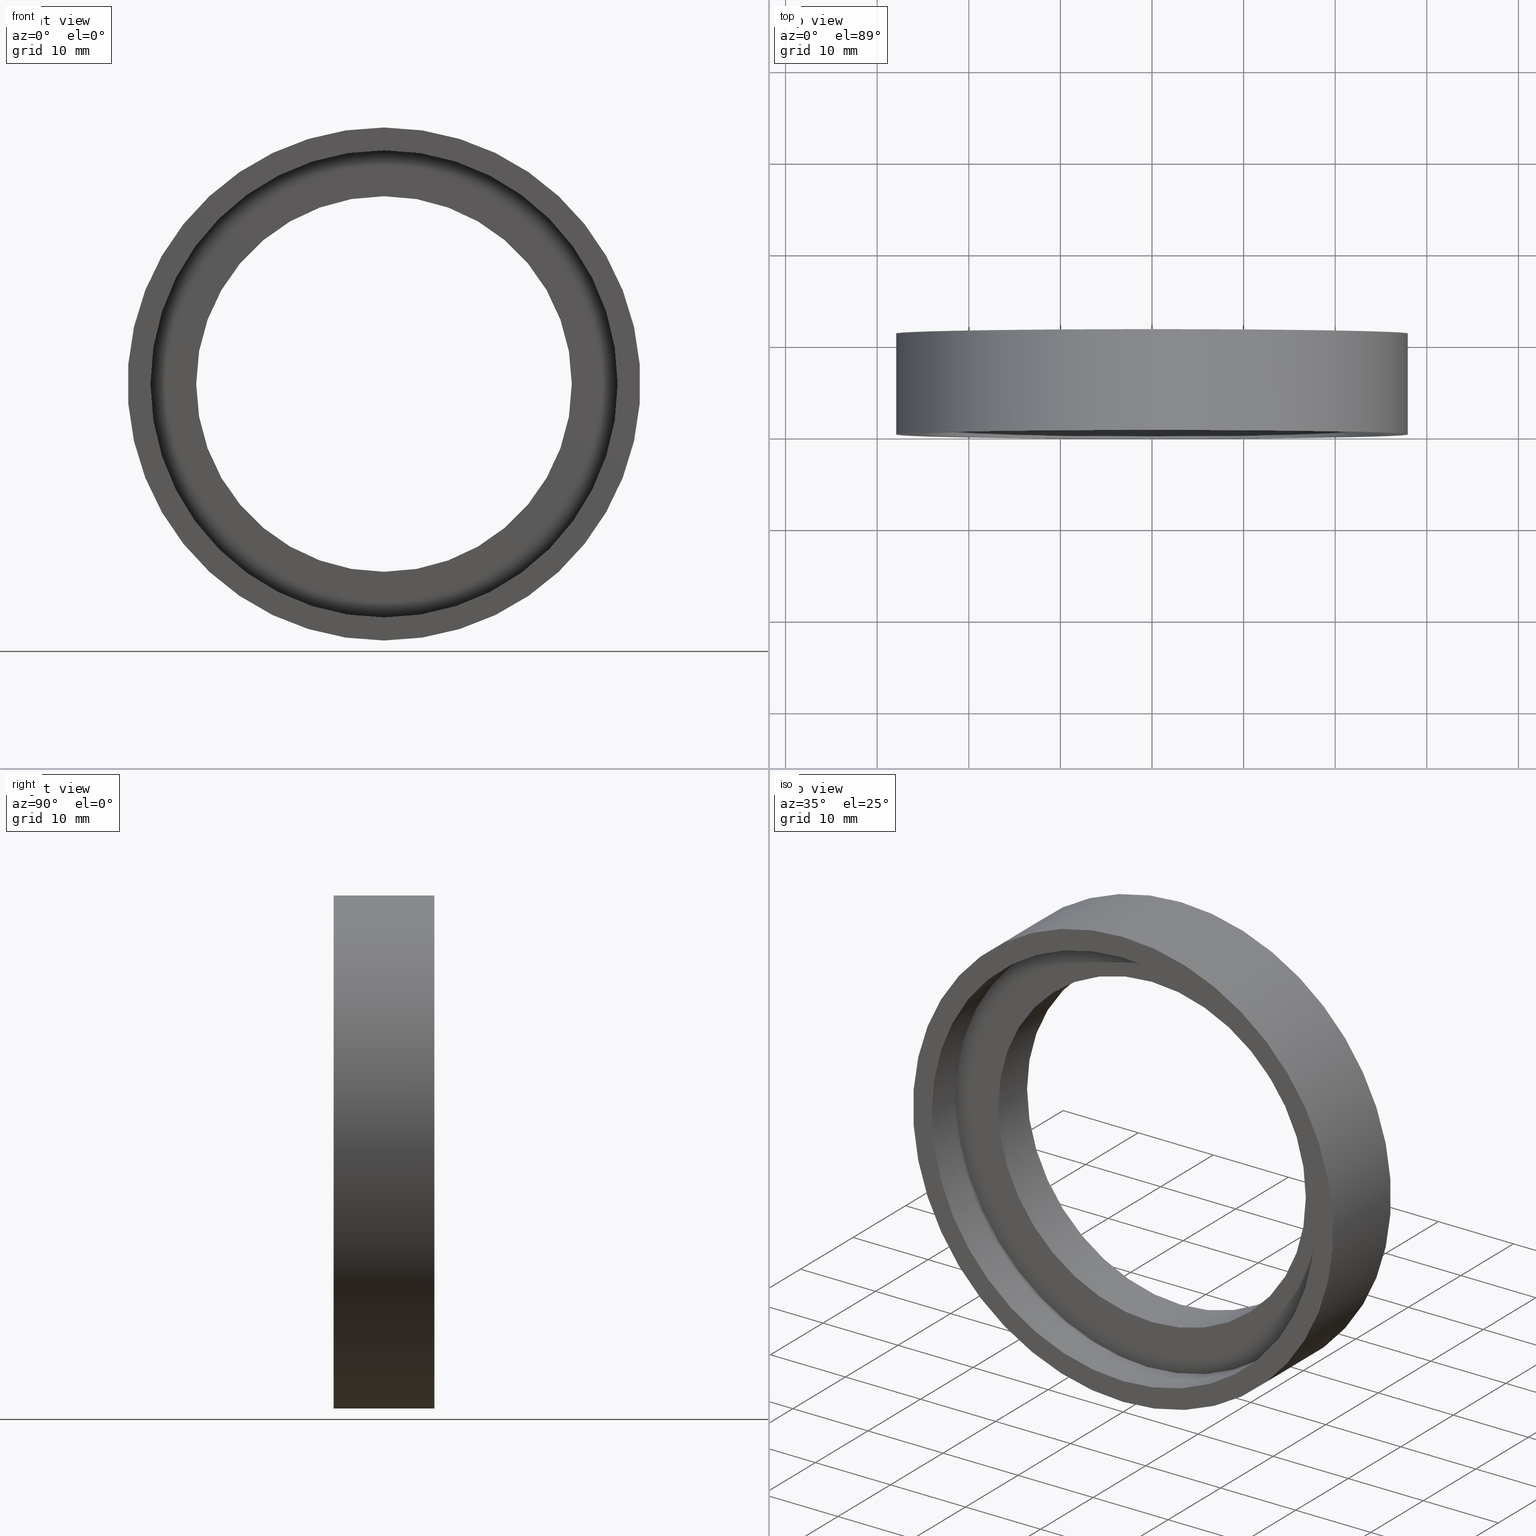
[diagram: canonical four-view strip — front | top / right | iso, engineering-drawing reading convention]
A machine part, canonical four-view strip (front | top / right | iso — engineering-drawing reading convention). The complete STEP part file that produces these views, byte-faithful:
ISO-10303-21;
HEADER;
FILE_DESCRIPTION (( 'STEP AP214' ),
    '1' );
FILE_NAME ('504009.STEP',
    '2019-10-09T02:01:39',
    ( 'user' ),
    ( '΢���й�' ),
    'SwSTEP 2.0',
    'SolidWorks 2016',
    '' );
FILE_SCHEMA (( 'AUTOMOTIVE_DESIGN' ));
ENDSEC;

DATA;
#1 = VERTEX_POINT ( 'NONE', #298 ) ;
#2 = EDGE_CURVE ( 'NONE', #226, #207, #62, .T. ) ;
#3 = ORIENTED_EDGE ( 'NONE', *, *, #2, .F. ) ;
#4 = FACE_OUTER_BOUND ( 'NONE', #138, .T. ) ;
#5 = EDGE_LOOP ( 'NONE', ( #185, #143, #164, #330 ) ) ;
#6 = CARTESIAN_POINT ( 'NONE',  ( 0.0000000000000000000, 0.0000000000000000000, 25.50000000000000400 ) ) ;
#7 =( LENGTH_UNIT ( ) NAMED_UNIT ( * ) SI_UNIT ( .MILLI., .METRE. ) );
#8 = EDGE_CURVE ( 'NONE', #245, #71, #25, .T. ) ;
#9 = CARTESIAN_POINT ( 'NONE',  ( 0.0000000000000000000, 60.02082041425541100, 0.0000000000000000000 ) ) ;
#10 = COLOUR_RGB ( '',1.000000000000000000, 1.000000000000000000, 1.000000000000000000 ) ;
#11 = AXIS2_PLACEMENT_3D ( 'NONE', #252, #101, #279 ) ;
#12 = DIRECTION ( 'NONE',  ( 0.0000000000000000000, -0.0000000000000000000, -1.000000000000000000 ) ) ;
#13 = DIRECTION ( 'NONE',  ( 0.0000000000000000000, 0.0000000000000000000, 1.000000000000000000 ) ) ;
#14 = DIRECTION ( 'NONE',  ( -0.0000000000000000000, 1.000000000000000000, -0.0000000000000000000 ) ) ;
#15 = CYLINDRICAL_SURFACE ( 'NONE', #203, 28.00000000000000400 ) ;
#16 = ORIENTED_EDGE ( 'NONE', *, *, #142, .T. ) ;
#17 =( LENGTH_UNIT ( ) NAMED_UNIT ( * ) SI_UNIT ( .MILLI., .METRE. ) );
#18 = EDGE_CURVE ( 'NONE', #392, #278, #255, .T. ) ;
#19 =( LENGTH_UNIT ( ) NAMED_UNIT ( * ) SI_UNIT ( .MILLI., .METRE. ) );
#20 = AXIS2_PLACEMENT_3D ( 'NONE', #369, #177, #402 ) ;
#21 = AXIS2_PLACEMENT_3D ( 'NONE', #384, #192, #412 ) ;
#22 = ADVANCED_FACE ( 'NONE', ( #322 ), #282, .F. ) ;
#23 = ORIENTED_EDGE ( 'NONE', *, *, #368, .T. ) ;
#24 = APPLICATION_PROTOCOL_DEFINITION ( 'draft international standard', 'automotive_design', 1998, #67 ) ;
#25 = CIRCLE ( 'NONE', #238, 25.50000000000000400 ) ;
#26 = VECTOR ( 'NONE', #60, 1000.000000000000000 ) ;
#27 =( LENGTH_UNIT ( ) NAMED_UNIT ( * ) SI_UNIT ( .MILLI., .METRE. ) );
#28 = SURFACE_STYLE_FILL_AREA ( #288 ) ;
#29 = ORIENTED_EDGE ( 'NONE', *, *, #391, .F. ) ;
#30 =( NAMED_UNIT ( * ) SI_UNIT ( $, .STERADIAN. ) SOLID_ANGLE_UNIT ( ) );
#31 = DIRECTION ( 'NONE',  ( -0.0000000000000000000, 1.000000000000000000, -0.0000000000000000000 ) ) ;
#32 =( NAMED_UNIT ( * ) PLANE_ANGLE_UNIT ( ) SI_UNIT ( $, .RADIAN. ) );
#33 = AXIS2_PLACEMENT_3D ( 'NONE', #102, #403, #316 ) ;
#34 = ORIENTED_EDGE ( 'NONE', *, *, #343, .T. ) ;
#35 = CARTESIAN_POINT ( 'NONE',  ( 0.0000000000000000000, 4.499999999999997300, 0.0000000000000000000 ) ) ;
#36 = ORIENTED_EDGE ( 'NONE', *, *, #351, .F. ) ;
#37 = AXIS2_PLACEMENT_3D ( 'NONE', #307, #73, #206 ) ;
#38 = CYLINDRICAL_SURFACE ( 'NONE', #256, 28.00000000000000400 ) ;
#39 = EDGE_CURVE ( 'NONE', #113, #392, #180, .T. ) ;
#40 = MANIFOLD_SOLID_BREP ( '��ת1', #338 ) ;
#41 = PLANE ( 'NONE',  #347 ) ;
#42 = AXIS2_PLACEMENT_3D ( 'NONE', #317, #179, #276 ) ;
#43 = SURFACE_SIDE_STYLE ('',( #28 ) ) ;
#44 = ORIENTED_EDGE ( 'NONE', *, *, #127, .T. ) ;
#45 = LINE ( 'NONE', #434, #140 ) ;
#46 = CARTESIAN_POINT ( 'NONE',  ( 0.0000000000000000000, 60.02082041425541100, 26.10000000000001200 ) ) ;
#47 = CARTESIAN_POINT ( 'NONE',  ( 25.50000000000000400, 4.499999999999998200, 0.0000000000000000000 ) ) ;
#48 = ORIENTED_EDGE ( 'NONE', *, *, #397, .F. ) ;
#49 = ORIENTED_EDGE ( 'NONE', *, *, #2, .T. ) ;
#50 = CARTESIAN_POINT ( 'NONE',  ( 0.0000000000000000000, 0.0000000000000000000, 0.0000000000000000000 ) ) ;
#51 = ORIENTED_EDGE ( 'NONE', *, *, #18, .F. ) ;
#52 = SURFACE_SIDE_STYLE ('',( #55 ) ) ;
#53 = DIRECTION ( 'NONE',  ( -0.0000000000000000000, 1.000000000000000000, -0.0000000000000000000 ) ) ;
#54 = AXIS2_PLACEMENT_3D ( 'NONE', #35, #135, #337 ) ;
#55 = SURFACE_STYLE_FILL_AREA ( #266 ) ;
#56 = CIRCLE ( 'NONE', #111, 20.50000000000000700 ) ;
#57 = ORIENTED_EDGE ( 'NONE', *, *, #8, .T. ) ;
#58 = AXIS2_PLACEMENT_3D ( 'NONE', #50, #14, #414 ) ;
#59 = SURFACE_STYLE_USAGE ( .BOTH. , #171 ) ;
#60 = DIRECTION ( 'NONE',  ( -0.0000000000000000000, 1.000000000000000000, -0.0000000000000000000 ) ) ;
#61 =( LENGTH_UNIT ( ) NAMED_UNIT ( * ) SI_UNIT ( .MILLI., .METRE. ) );
#62 = LINE ( 'NONE', #166, #158 ) ;
#63 = MECHANICAL_DESIGN_GEOMETRIC_PRESENTATION_REPRESENTATION (  '', ( #173 ), #399 ) ;
#64 = ADVANCED_FACE ( 'NONE', ( #191 ), #277, .F. ) ;
#65 = ORIENTED_EDGE ( 'NONE', *, *, #415, .F. ) ;
#66 = CIRCLE ( 'NONE', #54, 25.50000000000000400 ) ;
#67 = APPLICATION_CONTEXT ( 'automotive_design' ) ;
#68 = EDGE_LOOP ( 'NONE', ( #144, #373 ) ) ;
#69 = DIRECTION ( 'NONE',  ( 0.0000000000000000000, -1.000000000000000000, 0.0000000000000000000 ) ) ;
#70 = CARTESIAN_POINT ( 'NONE',  ( 0.0000000000000000000, 4.499999999999997300, 0.0000000000000000000 ) ) ;
#71 = VERTEX_POINT ( 'NONE', #417 ) ;
#72 = ORIENTED_EDGE ( 'NONE', *, *, #146, .T. ) ;
#73 = DIRECTION ( 'NONE',  ( -0.0000000000000000000, 1.000000000000000000, -0.0000000000000000000 ) ) ;
#74 = CIRCLE ( 'NONE', #20, 20.50000000000000700 ) ;
#75 = ORIENTED_EDGE ( 'NONE', *, *, #104, .T. ) ;
#76 = ORIENTED_EDGE ( 'NONE', *, *, #39, .T. ) ;
#77 = DIRECTION ( 'NONE',  ( -0.0000000000000000000, 1.000000000000000000, -0.0000000000000000000 ) ) ;
#78 = CIRCLE ( 'NONE', #222, 28.00000000000000700 ) ;
#79 = AXIS2_PLACEMENT_3D ( 'NONE', #354, #159, #386 ) ;
#80 = DIRECTION ( 'NONE',  ( 0.0000000000000000000, 0.0000000000000000000, 1.000000000000000000 ) ) ;
#81 = MECHANICAL_DESIGN_GEOMETRIC_PRESENTATION_REPRESENTATION (  '', ( #107 ), #97 ) ;
#82 = VECTOR ( 'NONE', #273, 1000.000000000000000 ) ;
#83 = VERTEX_POINT ( 'NONE', #196 ) ;
#84 = DIRECTION ( 'NONE',  ( 0.0000000000000000000, 0.0000000000000000000, 1.000000000000000000 ) ) ;
#85 = PRESENTATION_LAYER_ASSIGNMENT (  '', '', ( #173 ) ) ;
#86 =( LENGTH_UNIT ( ) NAMED_UNIT ( * ) SI_UNIT ( .MILLI., .METRE. ) );
#87 = MECHANICAL_DESIGN_GEOMETRIC_PRESENTATION_REPRESENTATION (  '', ( #365 ), #325 ) ;
#88 = LINE ( 'NONE', #355, #356 ) ;
#89 = DIRECTION ( 'NONE',  ( -0.0000000000000000000, 1.000000000000000000, -0.0000000000000000000 ) ) ;
#90 = EDGE_CURVE ( 'NONE', #344, #217, #88, .T. ) ;
#91 = FACE_BOUND ( 'NONE', #98, .T. ) ;
#92 = FILL_AREA_STYLE_COLOUR ( '', #335 ) ;
#93 = COLOUR_RGB ( '',1.000000000000000000, 1.000000000000000000, 1.000000000000000000 ) ;
#94 = ORIENTED_EDGE ( 'NONE', *, *, #118, .F. ) ;
#95 = ORIENTED_EDGE ( 'NONE', *, *, #401, .F. ) ;
#96 = FACE_OUTER_BOUND ( 'NONE', #133, .T. ) ;
#97 =( GEOMETRIC_REPRESENTATION_CONTEXT ( 3 ) GLOBAL_UNCERTAINTY_ASSIGNED_CONTEXT ( ( #265 ) ) GLOBAL_UNIT_ASSIGNED_CONTEXT ( ( #7, #225, #410 ) ) REPRESENTATION_CONTEXT ( 'NONE', 'WORKASPACE' ) );
#98 = EDGE_LOOP ( 'NONE', ( #72, #318 ) ) ;
#99 =( NAMED_UNIT ( * ) PLANE_ANGLE_UNIT ( ) SI_UNIT ( $, .RADIAN. ) );
#100 = CARTESIAN_POINT ( 'NONE',  ( 0.0000000000000000000, 10.99999999999999600, 0.0000000000000000000 ) ) ;
#101 = DIRECTION ( 'NONE',  ( -0.0000000000000000000, 1.000000000000000000, -0.0000000000000000000 ) ) ;
#102 = CARTESIAN_POINT ( 'NONE',  ( 28.00000000000000700, 0.0000000000000000000, 0.0000000000000000000 ) ) ;
#103 = AXIS2_PLACEMENT_3D ( 'NONE', #70, #334, #129 ) ;
#104 = EDGE_CURVE ( 'NONE', #71, #245, #429, .T. ) ;
#105 = VECTOR ( 'NONE', #155, 1000.000000000000000 ) ;
#106 = ORIENTED_EDGE ( 'NONE', *, *, #305, .T. ) ;
#107 = STYLED_ITEM ( 'NONE', ( #209 ), #229 ) ;
#108 = ORIENTED_EDGE ( 'NONE', *, *, #387, .T. ) ;
#109 = CARTESIAN_POINT ( 'NONE',  ( 2.510525938252074900E-015, 60.02082041425541100, -20.50000000000000700 ) ) ;
#110 = CARTESIAN_POINT ( 'NONE',  ( 0.0000000000000000000, 60.02082041425541100, 0.0000000000000000000 ) ) ;
#111 = AXIS2_PLACEMENT_3D ( 'NONE', #100, #270, #214 ) ;
#112 = FILL_AREA_STYLE_COLOUR ( '', #388 ) ;
#113 = VERTEX_POINT ( 'NONE', #324 ) ;
#114 = DIRECTION ( 'NONE',  ( -0.0000000000000000000, 1.000000000000000000, -0.0000000000000000000 ) ) ;
#115 = COLOUR_RGB ( '',1.000000000000000000, 1.000000000000000000, 1.000000000000000000 ) ;
#116 = DIRECTION ( 'NONE',  ( -0.0000000000000000000, 1.000000000000000000, -0.0000000000000000000 ) ) ;
#117 = FACE_OUTER_BOUND ( 'NONE', #175, .T. ) ;
#118 = EDGE_CURVE ( 'NONE', #113, #221, #184, .T. ) ;
#119 = EDGE_LOOP ( 'NONE', ( #65, #200, #239, #44 ) ) ;
#120 = ORIENTED_EDGE ( 'NONE', *, *, #415, .T. ) ;
#121 = DIRECTION ( 'NONE',  ( -0.0000000000000000000, 1.000000000000000000, -0.0000000000000000000 ) ) ;
#122 = FILL_AREA_STYLE_COLOUR ( '', #10 ) ;
#123 = DIRECTION ( 'NONE',  ( -0.0000000000000000000, 1.000000000000000000, -0.0000000000000000000 ) ) ;
#124 = ORIENTED_EDGE ( 'NONE', *, *, #258, .F. ) ;
#125 = EDGE_LOOP ( 'NONE', ( #94, #76, #284, #315 ) ) ;
#126 = FACE_BOUND ( 'NONE', #300, .T. ) ;
#127 = EDGE_CURVE ( 'NONE', #243, #1, #346, .T. ) ;
#128 =( GEOMETRIC_REPRESENTATION_CONTEXT ( 3 ) GLOBAL_UNCERTAINTY_ASSIGNED_CONTEXT ( ( #130 ) ) GLOBAL_UNIT_ASSIGNED_CONTEXT ( ( #86, #326, #234 ) ) REPRESENTATION_CONTEXT ( 'NONE', 'WORKASPACE' ) );
#129 = DIRECTION ( 'NONE',  ( 0.0000000000000000000, 0.0000000000000000000, 1.000000000000000000 ) ) ;
#130 = UNCERTAINTY_MEASURE_WITH_UNIT (LENGTH_MEASURE( 1.000000000000000100E-005 ), #86, 'distance_accuracy_value', 'NONE');
#131 = FACE_OUTER_BOUND ( 'NONE', #5, .T. ) ;
#132 = ADVANCED_FACE ( 'NONE', ( #96 ), #15, .T. ) ;
#133 = EDGE_LOOP ( 'NONE', ( #3, #241, #250, #295 ) ) ;
#134 = STYLED_ITEM ( 'NONE', ( #151 ), #64 ) ;
#135 = DIRECTION ( 'NONE',  ( -0.0000000000000000000, 1.000000000000000000, -0.0000000000000000000 ) ) ;
#136 = LINE ( 'NONE', #109, #82 ) ;
#137 = APPLICATION_PROTOCOL_DEFINITION ( 'draft international standard', 'automotive_design', 1998, #211 ) ;
#138 = EDGE_LOOP ( 'NONE', ( #108, #205 ) ) ;
#139 = CARTESIAN_POINT ( 'NONE',  ( 0.0000000000000000000, 0.0000000000000000000, 28.00000000000000700 ) ) ;
#140 = VECTOR ( 'NONE', #432, 1000.000000000000000 ) ;
#141 =( NAMED_UNIT ( * ) PLANE_ANGLE_UNIT ( ) SI_UNIT ( $, .RADIAN. ) );
#142 = EDGE_CURVE ( 'NONE', #217, #83, #366, .T. ) ;
#143 = ORIENTED_EDGE ( 'NONE', *, *, #387, .F. ) ;
#144 = ORIENTED_EDGE ( 'NONE', *, *, #127, .F. ) ;
#145 = VERTEX_POINT ( 'NONE', #263 ) ;
#146 = EDGE_CURVE ( 'NONE', #344, #220, #197, .T. ) ;
#147 = UNCERTAINTY_MEASURE_WITH_UNIT (LENGTH_MEASURE( 1.000000000000000100E-005 ), #27, 'distance_accuracy_value', 'NONE');
#148 = DIRECTION ( 'NONE',  ( -0.0000000000000000000, 1.000000000000000000, 0.0000000000000000000 ) ) ;
#149 = CIRCLE ( 'NONE', #201, 28.00000000000000400 ) ;
#150 = AXIS2_PLACEMENT_3D ( 'NONE', #413, #231, #13 ) ;
#151 = PRESENTATION_STYLE_ASSIGNMENT (( #294 ) ) ;
#152 = DIRECTION ( 'NONE',  ( 0.0000000000000000000, 0.0000000000000000000, 1.000000000000000000 ) ) ;
#153 = CARTESIAN_POINT ( 'NONE',  ( 3.429011037612589700E-015, 10.99999999999999600, -28.00000000000000400 ) ) ;
#154 = MECHANICAL_DESIGN_GEOMETRIC_PRESENTATION_REPRESENTATION (  '', ( #134 ), #128 ) ;
#155 = DIRECTION ( 'NONE',  ( -0.0000000000000000000, 1.000000000000000000, -0.0000000000000000000 ) ) ;
#156 = STYLED_ITEM ( 'NONE', ( #262 ), #377 ) ;
#157 = PLANE ( 'NONE',  #314 ) ;
#158 = VECTOR ( 'NONE', #332, 1000.000000000000000 ) ;
#159 = DIRECTION ( 'NONE',  ( -0.0000000000000000000, 1.000000000000000000, -0.0000000000000000000 ) ) ;
#160 = CARTESIAN_POINT ( 'NONE',  ( 0.0000000000000000000, 60.02082041425541100, 0.0000000000000000000 ) ) ;
#161 = ADVANCED_FACE ( 'NONE', ( #287, #4 ), #157, .F. ) ;
#162 = FACE_OUTER_BOUND ( 'NONE', #264, .T. ) ;
#163 =( NAMED_UNIT ( * ) SI_UNIT ( $, .STERADIAN. ) SOLID_ANGLE_UNIT ( ) );
#164 = ORIENTED_EDGE ( 'NONE', *, *, #178, .T. ) ;
#165 = FILL_AREA_STYLE ('',( #92 ) ) ;
#166 = CARTESIAN_POINT ( 'NONE',  ( 3.429011037612589700E-015, 60.02082041425541100, -28.00000000000000400 ) ) ;
#167 = COLOUR_RGB ( '',1.000000000000000000, 1.000000000000000000, 1.000000000000000000 ) ;
#168 = PRODUCT_DEFINITION_CONTEXT ( 'detailed design', #211, 'design' ) ;
#169 = VECTOR ( 'NONE', #89, 1000.000000000000000 ) ;
#170 = EDGE_LOOP ( 'NONE', ( #57, #75 ) ) ;
#171 = SURFACE_SIDE_STYLE ('',( #379 ) ) ;
#172 = SURFACE_SIDE_STYLE ('',( #428 ) ) ;
#173 = STYLED_ITEM ( 'NONE', ( #174 ), #327 ) ;
#174 = PRESENTATION_STYLE_ASSIGNMENT (( #367 ) ) ;
#175 = EDGE_LOOP ( 'NONE', ( #23, #49, #382, #48 ) ) ;
#176 = DIRECTION ( 'NONE',  ( 0.0000000000000000000, -0.0000000000000000000, -1.000000000000000000 ) ) ;
#177 = DIRECTION ( 'NONE',  ( -0.0000000000000000000, 1.000000000000000000, -0.0000000000000000000 ) ) ;
#178 = EDGE_CURVE ( 'NONE', #221, #278, #292, .T. ) ;
#179 = DIRECTION ( 'NONE',  ( -0.0000000000000000000, 1.000000000000000000, -0.0000000000000000000 ) ) ;
#180 = LINE ( 'NONE', #328, #169 ) ;
#181 =( GEOMETRIC_REPRESENTATION_CONTEXT ( 3 ) GLOBAL_UNCERTAINTY_ASSIGNED_CONTEXT ( ( #406 ) ) GLOBAL_UNIT_ASSIGNED_CONTEXT ( ( #61, #99, #311 ) ) REPRESENTATION_CONTEXT ( 'NONE', 'WORKASPACE' ) );
#182 = ORIENTED_EDGE ( 'NONE', *, *, #90, .T. ) ;
#183 = ADVANCED_FACE ( 'NONE', ( #375 ), #306, .F. ) ;
#184 = CIRCLE ( 'NONE', #79, 26.10000000000001200 ) ;
#185 = ORIENTED_EDGE ( 'NONE', *, *, #39, .F. ) ;
#186 = PRESENTATION_LAYER_ASSIGNMENT (  '', '', ( #345 ) ) ;
#187 = DIRECTION ( 'NONE',  ( 0.0000000000000000000, 0.0000000000000000000, 1.000000000000000000 ) ) ;
#188 = CYLINDRICAL_SURFACE ( 'NONE', #418, 20.50000000000000700 ) ;
#189 = AXIS2_PLACEMENT_3D ( 'NONE', #433, #69, #176 ) ;
#190 = CARTESIAN_POINT ( 'NONE',  ( 0.0000000000000000000, 4.499999999999997300, 26.10000000000001200 ) ) ;
#191 = FACE_OUTER_BOUND ( 'NONE', #286, .T. ) ;
#192 = DIRECTION ( 'NONE',  ( -0.0000000000000000000, 1.000000000000000000, -0.0000000000000000000 ) ) ;
#193 = ORIENTED_EDGE ( 'NONE', *, *, #323, .F. ) ;
#194 = DIRECTION ( 'NONE',  ( 0.0000000000000000000, 0.0000000000000000000, 1.000000000000000000 ) ) ;
#195 = ADVANCED_FACE ( 'NONE', ( #117 ), #38, .T. ) ;
#196 = CARTESIAN_POINT ( 'NONE',  ( 2.510525938252074900E-015, 10.99999999999999600, -20.50000000000000700 ) ) ;
#197 = CIRCLE ( 'NONE', #21, 20.50000000000000700 ) ;
#198 = EDGE_LOOP ( 'NONE', ( #193, #361, #182, #16 ) ) ;
#199 = FILL_AREA_STYLE ('',( #357 ) ) ;
#200 = ORIENTED_EDGE ( 'NONE', *, *, #8, .F. ) ;
#201 = AXIS2_PLACEMENT_3D ( 'NONE', #339, #363, #303 ) ;
#202 = DIRECTION ( 'NONE',  ( 0.0000000000000000000, 0.0000000000000000000, 1.000000000000000000 ) ) ;
#203 = AXIS2_PLACEMENT_3D ( 'NONE', #321, #53, #194 ) ;
#204 = DIRECTION ( 'NONE',  ( 0.0000000000000000000, 0.0000000000000000000, 1.000000000000000000 ) ) ;
#205 = ORIENTED_EDGE ( 'NONE', *, *, #118, .T. ) ;
#206 = DIRECTION ( 'NONE',  ( 0.0000000000000000000, 0.0000000000000000000, 1.000000000000000000 ) ) ;
#207 = VERTEX_POINT ( 'NONE', #153 ) ;
#208 = PRESENTATION_LAYER_ASSIGNMENT (  '', '', ( #156 ) ) ;
#209 = PRESENTATION_STYLE_ASSIGNMENT (( #260 ) ) ;
#210 = DIRECTION ( 'NONE',  ( -0.0000000000000000000, 1.000000000000000000, -0.0000000000000000000 ) ) ;
#211 = APPLICATION_CONTEXT ( 'automotive_design' ) ;
#212 = PRESENTATION_LAYER_ASSIGNMENT (  '', '', ( #365 ) ) ;
#213 = CARTESIAN_POINT ( 'NONE',  ( 0.0000000000000000000, 5.499999999999998200, 20.50000000000000700 ) ) ;
#214 = DIRECTION ( 'NONE',  ( 0.0000000000000000000, 0.0000000000000000000, 1.000000000000000000 ) ) ;
#215 = DIRECTION ( 'NONE',  ( 0.0000000000000000000, 0.0000000000000000000, 1.000000000000000000 ) ) ;
#216 = MECHANICAL_DESIGN_GEOMETRIC_PRESENTATION_REPRESENTATION (  '', ( #156 ), #230 ) ;
#217 = VERTEX_POINT ( 'NONE', #349 ) ;
#218 = ORIENTED_EDGE ( 'NONE', *, *, #401, .T. ) ;
#219 = CARTESIAN_POINT ( 'NONE',  ( 0.0000000000000000000, 10.99999999999999600, 0.0000000000000000000 ) ) ;
#220 = VERTEX_POINT ( 'NONE', #350 ) ;
#221 = VERTEX_POINT ( 'NONE', #190 ) ;
#222 = AXIS2_PLACEMENT_3D ( 'NONE', #253, #31, #246 ) ;
#223 = CARTESIAN_POINT ( 'NONE',  ( 26.10000000000001600, 5.499999999999998200, 0.0000000000000000000 ) ) ;
#224 = FACE_OUTER_BOUND ( 'NONE', #119, .T. ) ;
#225 =( NAMED_UNIT ( * ) PLANE_ANGLE_UNIT ( ) SI_UNIT ( $, .RADIAN. ) );
#226 = VERTEX_POINT ( 'NONE', #289 ) ;
#227 = PRODUCT_DEFINITION_SHAPE ( 'NONE', 'NONE',  #274 ) ;
#228 = DIRECTION ( 'NONE',  ( 0.0000000000000000000, -1.000000000000000000, 0.0000000000000000000 ) ) ;
#229 = ADVANCED_FACE ( 'NONE', ( #233 ), #188, .F. ) ;
#230 =( GEOMETRIC_REPRESENTATION_CONTEXT ( 3 ) GLOBAL_UNCERTAINTY_ASSIGNED_CONTEXT ( ( #147 ) ) GLOBAL_UNIT_ASSIGNED_CONTEXT ( ( #27, #32, #248 ) ) REPRESENTATION_CONTEXT ( 'NONE', 'WORKASPACE' ) );
#231 = DIRECTION ( 'NONE',  ( -0.0000000000000000000, 1.000000000000000000, -0.0000000000000000000 ) ) ;
#232 = CIRCLE ( 'NONE', #247, 28.00000000000000400 ) ;
#233 = FACE_OUTER_BOUND ( 'NONE', #283, .T. ) ;
#234 =( NAMED_UNIT ( * ) SI_UNIT ( $, .STERADIAN. ) SOLID_ANGLE_UNIT ( ) );
#235 = SURFACE_STYLE_USAGE ( .BOTH. , #419 ) ;
#236 = AXIS2_PLACEMENT_3D ( 'NONE', #9, #261, #84 ) ;
#237 = SURFACE_STYLE_USAGE ( .BOTH. , #268 ) ;
#238 = AXIS2_PLACEMENT_3D ( 'NONE', #269, #394, #423 ) ;
#239 = ORIENTED_EDGE ( 'NONE', *, *, #391, .T. ) ;
#240 = ADVANCED_FACE ( 'NONE', ( #131 ), #422, .F. ) ;
#241 = ORIENTED_EDGE ( 'NONE', *, *, #297, .T. ) ;
#242 = DIRECTION ( 'NONE',  ( 1.000000000000000000, 0.0000000000000000000, 0.0000000000000000000 ) ) ;
#243 = VERTEX_POINT ( 'NONE', #257 ) ;
#244 = PRODUCT ( '504009', '504009', '', ( #431 ) ) ;
#245 = VERTEX_POINT ( 'NONE', #6 ) ;
#246 = DIRECTION ( 'NONE',  ( 0.0000000000000000000, 0.0000000000000000000, 1.000000000000000000 ) ) ;
#247 = AXIS2_PLACEMENT_3D ( 'NONE', #219, #210, #398 ) ;
#248 =( NAMED_UNIT ( * ) SI_UNIT ( $, .STERADIAN. ) SOLID_ANGLE_UNIT ( ) );
#249 = CYLINDRICAL_SURFACE ( 'NONE', #42, 25.50000000000000400 ) ;
#250 = ORIENTED_EDGE ( 'NONE', *, *, #397, .T. ) ;
#251 = ADVANCED_FACE ( 'NONE', ( #341, #91 ), #41, .F. ) ;
#252 = CARTESIAN_POINT ( 'NONE',  ( 0.0000000000000000000, 0.0000000000000000000, 0.0000000000000000000 ) ) ;
#253 = CARTESIAN_POINT ( 'NONE',  ( 0.0000000000000000000, 0.0000000000000000000, 0.0000000000000000000 ) ) ;
#254 =( GEOMETRIC_REPRESENTATION_CONTEXT ( 3 ) GLOBAL_UNCERTAINTY_ASSIGNED_CONTEXT ( ( #329 ) ) GLOBAL_UNIT_ASSIGNED_CONTEXT ( ( #17, #267, #390 ) ) REPRESENTATION_CONTEXT ( 'NONE', 'WORKASPACE' ) );
#255 = CIRCLE ( 'NONE', #340, 26.10000000000001600 ) ;
#256 = AXIS2_PLACEMENT_3D ( 'NONE', #319, #411, #80 ) ;
#257 = CARTESIAN_POINT ( 'NONE',  ( 0.0000000000000000000, 4.499999999999997300, 25.50000000000000400 ) ) ;
#258 = EDGE_CURVE ( 'NONE', #278, #392, #385, .T. ) ;
#259 = UNCERTAINTY_MEASURE_WITH_UNIT (LENGTH_MEASURE( 1.000000000000000100E-005 ), #19, 'distance_accuracy_value', 'NONE');
#260 = SURFACE_STYLE_USAGE ( .BOTH. , #43 ) ;
#261 = DIRECTION ( 'NONE',  ( -0.0000000000000000000, 1.000000000000000000, -0.0000000000000000000 ) ) ;
#262 = PRESENTATION_STYLE_ASSIGNMENT (( #59 ) ) ;
#263 = CARTESIAN_POINT ( 'NONE',  ( 0.0000000000000000000, 10.99999999999999600, 28.00000000000000400 ) ) ;
#264 = EDGE_LOOP ( 'NONE', ( #376, #400 ) ) ;
#265 = UNCERTAINTY_MEASURE_WITH_UNIT (LENGTH_MEASURE( 1.000000000000000100E-005 ), #7, 'distance_accuracy_value', 'NONE');
#266 = FILL_AREA_STYLE ('',( #122 ) ) ;
#267 =( NAMED_UNIT ( * ) PLANE_ANGLE_UNIT ( ) SI_UNIT ( $, .RADIAN. ) );
#268 = SURFACE_SIDE_STYLE ('',( #405 ) ) ;
#269 = CARTESIAN_POINT ( 'NONE',  ( 0.0000000000000000000, 0.0000000000000000000, 0.0000000000000000000 ) ) ;
#270 = DIRECTION ( 'NONE',  ( -0.0000000000000000000, 1.000000000000000000, -0.0000000000000000000 ) ) ;
#271 = SURFACE_STYLE_FILL_AREA ( #199 ) ;
#272 = EDGE_LOOP ( 'NONE', ( #124, #51 ) ) ;
#273 = DIRECTION ( 'NONE',  ( -0.0000000000000000000, 1.000000000000000000, -0.0000000000000000000 ) ) ;
#274 = PRODUCT_DEFINITION ( 'δ֪', '', #291, #168 ) ;
#275 = MECHANICAL_DESIGN_GEOMETRIC_PRESENTATION_REPRESENTATION (  '', ( #345 ), #254 ) ;
#276 = DIRECTION ( 'NONE',  ( 0.0000000000000000000, 0.0000000000000000000, 1.000000000000000000 ) ) ;
#277 = CYLINDRICAL_SURFACE ( 'NONE', #393, 25.50000000000000400 ) ;
#278 = VERTEX_POINT ( 'NONE', #364 ) ;
#279 = DIRECTION ( 'NONE',  ( 0.0000000000000000000, 0.0000000000000000000, 1.000000000000000000 ) ) ;
#280 = FILL_AREA_STYLE ('',( #424 ) ) ;
#281 = CARTESIAN_POINT ( 'NONE',  ( 0.0000000000000000000, 60.02082041425541100, 28.00000000000000400 ) ) ;
#282 = CYLINDRICAL_SURFACE ( 'NONE', #389, 20.50000000000000700 ) ;
#283 = EDGE_LOOP ( 'NONE', ( #36, #293, #218, #408 ) ) ;
#284 = ORIENTED_EDGE ( 'NONE', *, *, #18, .T. ) ;
#285 = VECTOR ( 'NONE', #302, 1000.000000000000000 ) ;
#286 = EDGE_LOOP ( 'NONE', ( #425, #120, #34, #29 ) ) ;
#287 = FACE_BOUND ( 'NONE', #68, .T. ) ;
#288 = FILL_AREA_STYLE ('',( #112 ) ) ;
#289 = CARTESIAN_POINT ( 'NONE',  ( 3.429011037612590100E-015, 0.0000000000000000000, -28.00000000000001100 ) ) ;
#290 = AXIS2_PLACEMENT_3D ( 'NONE', #313, #215, #242 ) ;
#291 = PRODUCT_DEFINITION_FORMATION_WITH_SPECIFIED_SOURCE ( '�κ�', '', #244, .NOT_KNOWN. ) ;
#292 = LINE ( 'NONE', #46, #105 ) ;
#293 = ORIENTED_EDGE ( 'NONE', *, *, #323, .T. ) ;
#294 = SURFACE_STYLE_USAGE ( .BOTH. , #52 ) ;
#295 = ORIENTED_EDGE ( 'NONE', *, *, #426, .F. ) ;
#296 = CARTESIAN_POINT ( 'NONE',  ( 0.0000000000000000000, 60.02082041425541100, 0.0000000000000000000 ) ) ;
#297 = EDGE_CURVE ( 'NONE', #226, #371, #78, .T. ) ;
#298 = CARTESIAN_POINT ( 'NONE',  ( 3.122849337825751400E-015, 4.499999999999997300, -25.50000000000000400 ) ) ;
#299 = PRESENTATION_STYLE_ASSIGNMENT (( #235 ) ) ;
#300 = EDGE_LOOP ( 'NONE', ( #374, #95 ) ) ;
#301 = FACE_OUTER_BOUND ( 'NONE', #362, .T. ) ;
#302 = DIRECTION ( 'NONE',  ( -0.0000000000000000000, 1.000000000000000000, -0.0000000000000000000 ) ) ;
#303 = DIRECTION ( 'NONE',  ( 0.0000000000000000000, 0.0000000000000000000, 1.000000000000000000 ) ) ;
#304 = PRESENTATION_LAYER_ASSIGNMENT (  '', '', ( #107 ) ) ;
#305 = EDGE_CURVE ( 'NONE', #145, #207, #232, .T. ) ;
#306 = CYLINDRICAL_SURFACE ( 'NONE', #236, 26.10000000000001200 ) ;
#307 = CARTESIAN_POINT ( 'NONE',  ( 0.0000000000000000000, 5.499999999999998200, 0.0000000000000000000 ) ) ;
#308 = UNCERTAINTY_MEASURE_WITH_UNIT (LENGTH_MEASURE( 1.000000000000000100E-005 ), #372, 'distance_accuracy_value', 'NONE');
#309 = CARTESIAN_POINT ( 'NONE',  ( 3.196328145774594300E-015, 5.499999999999998200, -26.10000000000001900 ) ) ;
#310 = PRODUCT_RELATED_PRODUCT_CATEGORY ( 'part', '', ( #244 ) ) ;
#311 =( NAMED_UNIT ( * ) SI_UNIT ( $, .STERADIAN. ) SOLID_ANGLE_UNIT ( ) );
#312 = PLANE ( 'NONE',  #189 ) ;
#313 = CARTESIAN_POINT ( 'NONE',  ( 0.0000000000000000000, 0.0000000000000000000, 0.0000000000000000000 ) ) ;
#314 = AXIS2_PLACEMENT_3D ( 'NONE', #47, #228, #12 ) ;
#315 = ORIENTED_EDGE ( 'NONE', *, *, #178, .F. ) ;
#316 = DIRECTION ( 'NONE',  ( 0.0000000000000000000, 0.0000000000000000000, 1.000000000000000000 ) ) ;
#317 = CARTESIAN_POINT ( 'NONE',  ( 0.0000000000000000000, 60.02082041425541100, 0.0000000000000000000 ) ) ;
#318 = ORIENTED_EDGE ( 'NONE', *, *, #351, .T. ) ;
#319 = CARTESIAN_POINT ( 'NONE',  ( 0.0000000000000000000, 60.02082041425541100, 0.0000000000000000000 ) ) ;
#320 = CARTESIAN_POINT ( 'NONE',  ( 0.0000000000000000000, 10.99999999999999600, 0.0000000000000000000 ) ) ;
#321 = CARTESIAN_POINT ( 'NONE',  ( 0.0000000000000000000, 60.02082041425541100, 0.0000000000000000000 ) ) ;
#322 = FACE_OUTER_BOUND ( 'NONE', #198, .T. ) ;
#323 = EDGE_CURVE ( 'NONE', #220, #83, #136, .T. ) ;
#324 = CARTESIAN_POINT ( 'NONE',  ( 3.196328145774593500E-015, 4.499999999999997300, -26.10000000000001200 ) ) ;
#325 =( GEOMETRIC_REPRESENTATION_CONTEXT ( 3 ) GLOBAL_UNCERTAINTY_ASSIGNED_CONTEXT ( ( #259 ) ) GLOBAL_UNIT_ASSIGNED_CONTEXT ( ( #19, #421, #163 ) ) REPRESENTATION_CONTEXT ( 'NONE', 'WORKASPACE' ) );
#326 =( NAMED_UNIT ( * ) PLANE_ANGLE_UNIT ( ) SI_UNIT ( $, .RADIAN. ) );
#327 = ADVANCED_FACE ( 'NONE', ( #224 ), #249, .F. ) ;
#328 = CARTESIAN_POINT ( 'NONE',  ( 3.196328145774593500E-015, 60.02082041425541100, -26.10000000000001200 ) ) ;
#329 = UNCERTAINTY_MEASURE_WITH_UNIT (LENGTH_MEASURE( 1.000000000000000100E-005 ), #17, 'distance_accuracy_value', 'NONE');
#330 = ORIENTED_EDGE ( 'NONE', *, *, #258, .T. ) ;
#331 = CARTESIAN_POINT ( 'NONE',  ( 0.0000000000000000000, 5.499999999999998200, 0.0000000000000000000 ) ) ;
#332 = DIRECTION ( 'NONE',  ( -0.0000000000000000000, 1.000000000000000000, -0.0000000000000000000 ) ) ;
#333 = ADVANCED_FACE ( 'NONE', ( #162, #420 ), #395, .F. ) ;
#334 = DIRECTION ( 'NONE',  ( -0.0000000000000000000, 1.000000000000000000, -0.0000000000000000000 ) ) ;
#335 = COLOUR_RGB ( '',1.000000000000000000, 1.000000000000000000, 1.000000000000000000 ) ;
#336 = CIRCLE ( 'NONE', #103, 26.10000000000001200 ) ;
#337 = DIRECTION ( 'NONE',  ( 0.0000000000000000000, 0.0000000000000000000, 1.000000000000000000 ) ) ;
#338 = CLOSED_SHELL ( 'NONE', ( #195, #229, #183, #64, #333, #327, #161, #240, #251, #22, #416, #132 ) ) ;
#339 = CARTESIAN_POINT ( 'NONE',  ( 0.0000000000000000000, 10.99999999999999600, 0.0000000000000000000 ) ) ;
#340 = AXIS2_PLACEMENT_3D ( 'NONE', #331, #123, #358 ) ;
#341 = FACE_OUTER_BOUND ( 'NONE', #272, .T. ) ;
#342 = CARTESIAN_POINT ( 'NONE',  ( 3.122849337825751400E-015, 60.02082041425541100, -25.50000000000000400 ) ) ;
#343 = EDGE_CURVE ( 'NONE', #1, #243, #66, .T. ) ;
#344 = VERTEX_POINT ( 'NONE', #213 ) ;
#345 = STYLED_ITEM ( 'NONE', ( #299 ), #40 ) ;
#346 = CIRCLE ( 'NONE', #150, 25.50000000000000400 ) ;
#347 = AXIS2_PLACEMENT_3D ( 'NONE', #223, #148, #187 ) ;
#348 = DIRECTION ( 'NONE',  ( 0.0000000000000000000, 0.0000000000000000000, 1.000000000000000000 ) ) ;
#349 = CARTESIAN_POINT ( 'NONE',  ( 0.0000000000000000000, 10.99999999999999600, 20.50000000000000700 ) ) ;
#350 = CARTESIAN_POINT ( 'NONE',  ( 2.510525938252074900E-015, 5.499999999999998200, -20.50000000000000700 ) ) ;
#351 = EDGE_CURVE ( 'NONE', #220, #344, #74, .T. ) ;
#352 = ORIENTED_EDGE ( 'NONE', *, *, #426, .T. ) ;
#353 = DIRECTION ( 'NONE',  ( 0.0000000000000000000, 0.0000000000000000000, 1.000000000000000000 ) ) ;
#354 = CARTESIAN_POINT ( 'NONE',  ( 0.0000000000000000000, 4.499999999999997300, 0.0000000000000000000 ) ) ;
#355 = CARTESIAN_POINT ( 'NONE',  ( 0.0000000000000000000, 60.02082041425541100, 20.50000000000000700 ) ) ;
#356 = VECTOR ( 'NONE', #116, 1000.000000000000000 ) ;
#357 = FILL_AREA_STYLE_COLOUR ( '', #93 ) ;
#358 = DIRECTION ( 'NONE',  ( 0.0000000000000000000, 0.0000000000000000000, 1.000000000000000000 ) ) ;
#359 = DIRECTION ( 'NONE',  ( -0.0000000000000000000, 1.000000000000000000, -0.0000000000000000000 ) ) ;
#360 = PRESENTATION_STYLE_ASSIGNMENT (( #237 ) ) ;
#361 = ORIENTED_EDGE ( 'NONE', *, *, #146, .F. ) ;
#362 = EDGE_LOOP ( 'NONE', ( #106, #352 ) ) ;
#363 = DIRECTION ( 'NONE',  ( -0.0000000000000000000, 1.000000000000000000, -0.0000000000000000000 ) ) ;
#364 = CARTESIAN_POINT ( 'NONE',  ( 0.0000000000000000000, 5.499999999999998200, 26.10000000000001600 ) ) ;
#365 = STYLED_ITEM ( 'NONE', ( #360 ), #22 ) ;
#366 = CIRCLE ( 'NONE', #370, 20.50000000000000700 ) ;
#367 = SURFACE_STYLE_USAGE ( .BOTH. , #172 ) ;
#368 = EDGE_CURVE ( 'NONE', #371, #226, #407, .T. ) ;
#369 = CARTESIAN_POINT ( 'NONE',  ( 0.0000000000000000000, 5.499999999999998200, 0.0000000000000000000 ) ) ;
#370 = AXIS2_PLACEMENT_3D ( 'NONE', #320, #114, #353 ) ;
#371 = VERTEX_POINT ( 'NONE', #139 ) ;
#372 =( LENGTH_UNIT ( ) NAMED_UNIT ( * ) SI_UNIT ( .MILLI., .METRE. ) );
#373 = ORIENTED_EDGE ( 'NONE', *, *, #343, .F. ) ;
#374 = ORIENTED_EDGE ( 'NONE', *, *, #142, .F. ) ;
#375 = FACE_OUTER_BOUND ( 'NONE', #125, .T. ) ;
#376 = ORIENTED_EDGE ( 'NONE', *, *, #368, .F. ) ;
#377 = ADVANCED_BREP_SHAPE_REPRESENTATION ( '504009', ( #40, #290 ), #181 ) ;
#378 = CARTESIAN_POINT ( 'NONE',  ( 0.0000000000000000000, 60.02082041425541100, 0.0000000000000000000 ) ) ;
#379 = SURFACE_STYLE_FILL_AREA ( #280 ) ;
#380 = DIRECTION ( 'NONE',  ( -0.0000000000000000000, 1.000000000000000000, -0.0000000000000000000 ) ) ;
#381 = PRESENTATION_LAYER_ASSIGNMENT (  '', '', ( #134 ) ) ;
#382 = ORIENTED_EDGE ( 'NONE', *, *, #305, .F. ) ;
#383 = LINE ( 'NONE', #342, #26 ) ;
#384 = CARTESIAN_POINT ( 'NONE',  ( 0.0000000000000000000, 5.499999999999998200, 0.0000000000000000000 ) ) ;
#385 = CIRCLE ( 'NONE', #37, 26.10000000000001600 ) ;
#386 = DIRECTION ( 'NONE',  ( 0.0000000000000000000, 0.0000000000000000000, 1.000000000000000000 ) ) ;
#387 = EDGE_CURVE ( 'NONE', #221, #113, #336, .T. ) ;
#388 = COLOUR_RGB ( '',1.000000000000000000, 1.000000000000000000, 1.000000000000000000 ) ;
#389 = AXIS2_PLACEMENT_3D ( 'NONE', #296, #359, #202 ) ;
#390 =( NAMED_UNIT ( * ) SI_UNIT ( $, .STERADIAN. ) SOLID_ANGLE_UNIT ( ) );
#391 = EDGE_CURVE ( 'NONE', #245, #243, #45, .T. ) ;
#392 = VERTEX_POINT ( 'NONE', #309 ) ;
#393 = AXIS2_PLACEMENT_3D ( 'NONE', #160, #121, #204 ) ;
#394 = DIRECTION ( 'NONE',  ( -0.0000000000000000000, 1.000000000000000000, -0.0000000000000000000 ) ) ;
#395 = PLANE ( 'NONE',  #33 ) ;
#396 = SHAPE_DEFINITION_REPRESENTATION ( #227, #377 ) ;
#397 = EDGE_CURVE ( 'NONE', #371, #145, #409, .T. ) ;
#398 = DIRECTION ( 'NONE',  ( 0.0000000000000000000, 0.0000000000000000000, 1.000000000000000000 ) ) ;
#399 =( GEOMETRIC_REPRESENTATION_CONTEXT ( 3 ) GLOBAL_UNCERTAINTY_ASSIGNED_CONTEXT ( ( #308 ) ) GLOBAL_UNIT_ASSIGNED_CONTEXT ( ( #372, #141, #30 ) ) REPRESENTATION_CONTEXT ( 'NONE', 'WORKASPACE' ) );
#400 = ORIENTED_EDGE ( 'NONE', *, *, #297, .F. ) ;
#401 = EDGE_CURVE ( 'NONE', #83, #217, #56, .T. ) ;
#402 = DIRECTION ( 'NONE',  ( 0.0000000000000000000, 0.0000000000000000000, 1.000000000000000000 ) ) ;
#403 = DIRECTION ( 'NONE',  ( -0.0000000000000000000, 1.000000000000000000, 0.0000000000000000000 ) ) ;
#404 = AXIS2_PLACEMENT_3D ( 'NONE', #110, #77, #348 ) ;
#405 = SURFACE_STYLE_FILL_AREA ( #165 ) ;
#406 = UNCERTAINTY_MEASURE_WITH_UNIT (LENGTH_MEASURE( 1.000000000000000100E-005 ), #61, 'distance_accuracy_value', 'NONE');
#407 = CIRCLE ( 'NONE', #11, 28.00000000000000700 ) ;
#408 = ORIENTED_EDGE ( 'NONE', *, *, #90, .F. ) ;
#409 = LINE ( 'NONE', #281, #285 ) ;
#410 =( NAMED_UNIT ( * ) SI_UNIT ( $, .STERADIAN. ) SOLID_ANGLE_UNIT ( ) );
#411 = DIRECTION ( 'NONE',  ( -0.0000000000000000000, 1.000000000000000000, -0.0000000000000000000 ) ) ;
#412 = DIRECTION ( 'NONE',  ( 0.0000000000000000000, 0.0000000000000000000, 1.000000000000000000 ) ) ;
#413 = CARTESIAN_POINT ( 'NONE',  ( 0.0000000000000000000, 4.499999999999997300, 0.0000000000000000000 ) ) ;
#414 = DIRECTION ( 'NONE',  ( 0.0000000000000000000, 0.0000000000000000000, 1.000000000000000000 ) ) ;
#415 = EDGE_CURVE ( 'NONE', #71, #1, #383, .T. ) ;
#416 = ADVANCED_FACE ( 'NONE', ( #126, #301 ), #312, .F. ) ;
#417 = CARTESIAN_POINT ( 'NONE',  ( 3.122849337825751400E-015, 0.0000000000000000000, -25.50000000000000400 ) ) ;
#418 = AXIS2_PLACEMENT_3D ( 'NONE', #378, #380, #152 ) ;
#419 = SURFACE_SIDE_STYLE ('',( #271 ) ) ;
#420 = FACE_BOUND ( 'NONE', #170, .T. ) ;
#421 =( NAMED_UNIT ( * ) PLANE_ANGLE_UNIT ( ) SI_UNIT ( $, .RADIAN. ) );
#422 = CYLINDRICAL_SURFACE ( 'NONE', #404, 26.10000000000001200 ) ;
#423 = DIRECTION ( 'NONE',  ( 0.0000000000000000000, 0.0000000000000000000, 1.000000000000000000 ) ) ;
#424 = FILL_AREA_STYLE_COLOUR ( '', #167 ) ;
#425 = ORIENTED_EDGE ( 'NONE', *, *, #104, .F. ) ;
#426 = EDGE_CURVE ( 'NONE', #207, #145, #149, .T. ) ;
#427 = FILL_AREA_STYLE ('',( #430 ) ) ;
#428 = SURFACE_STYLE_FILL_AREA ( #427 ) ;
#429 = CIRCLE ( 'NONE', #58, 25.50000000000000400 ) ;
#430 = FILL_AREA_STYLE_COLOUR ( '', #115 ) ;
#431 = PRODUCT_CONTEXT ( 'NONE', #67, 'mechanical' ) ;
#432 = DIRECTION ( 'NONE',  ( -0.0000000000000000000, 1.000000000000000000, -0.0000000000000000000 ) ) ;
#433 = CARTESIAN_POINT ( 'NONE',  ( 20.50000000000000700, 11.00000000000000000, 0.0000000000000000000 ) ) ;
#434 = CARTESIAN_POINT ( 'NONE',  ( 0.0000000000000000000, 60.02082041425541100, 25.50000000000000400 ) ) ;
ENDSEC;
END-ISO-10303-21;
